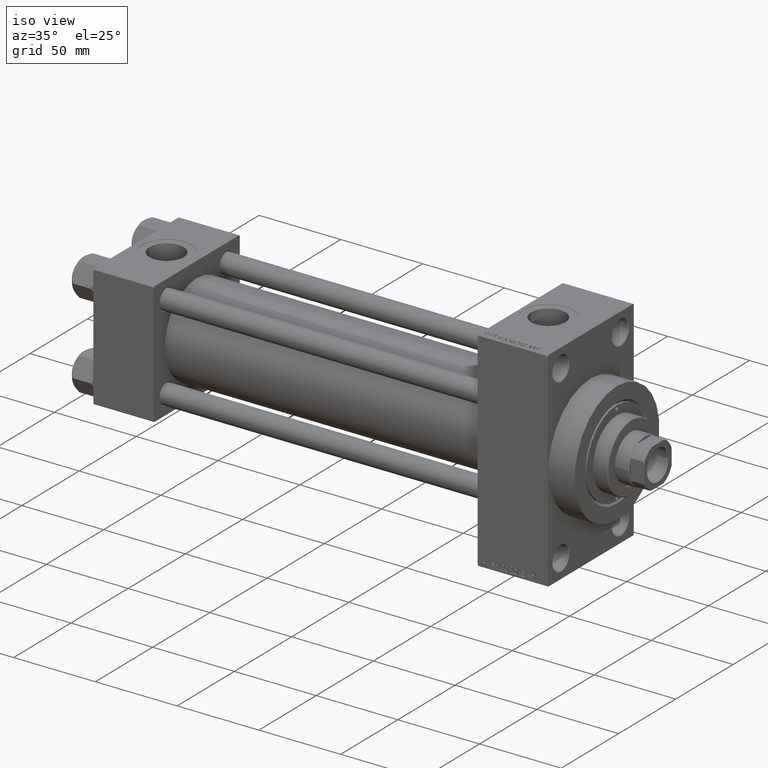
[diagram: clean part render]
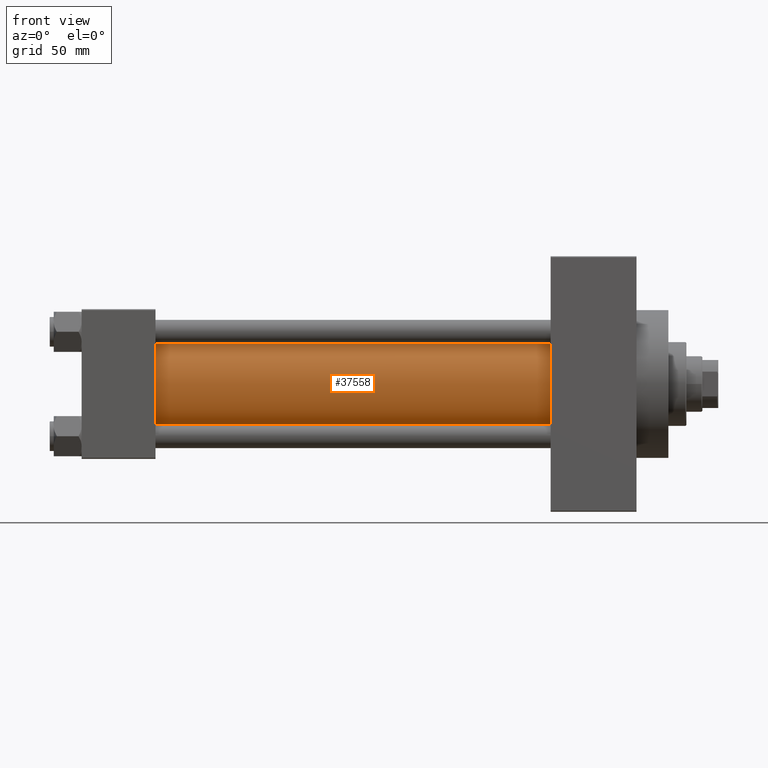
[diagram: tour spotlight — one face highlighted and labeled with its STEP entity id]
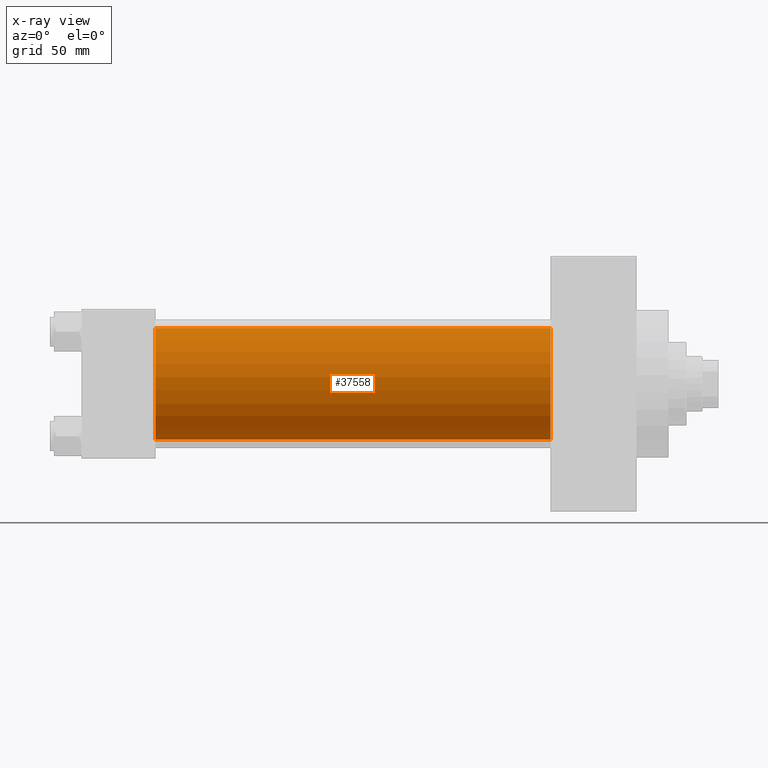
[diagram: x-ray of the same camera — body ghosted, this tour face saturated]
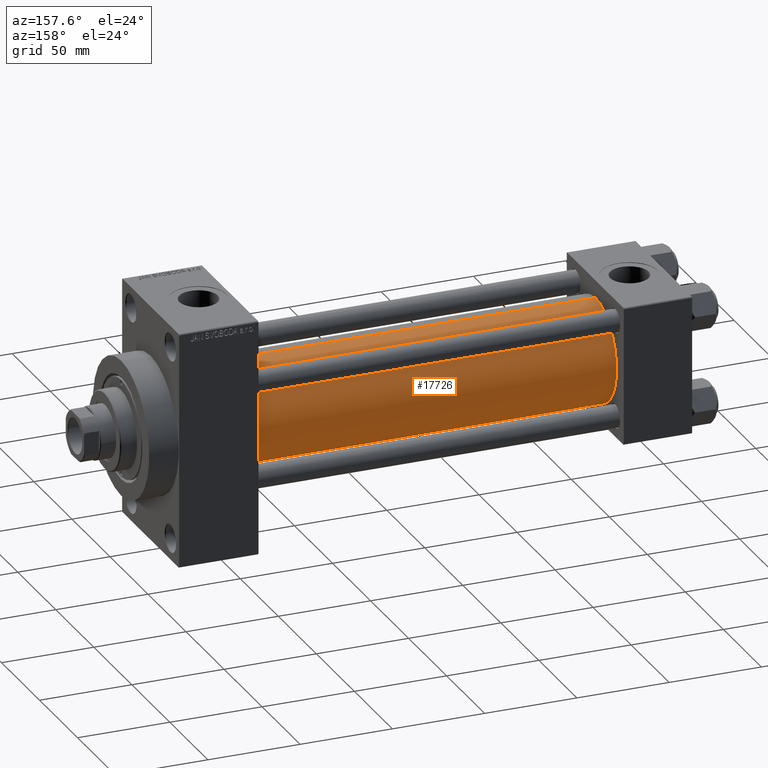
[diagram: tour spotlight — one face highlighted and labeled with its STEP entity id]
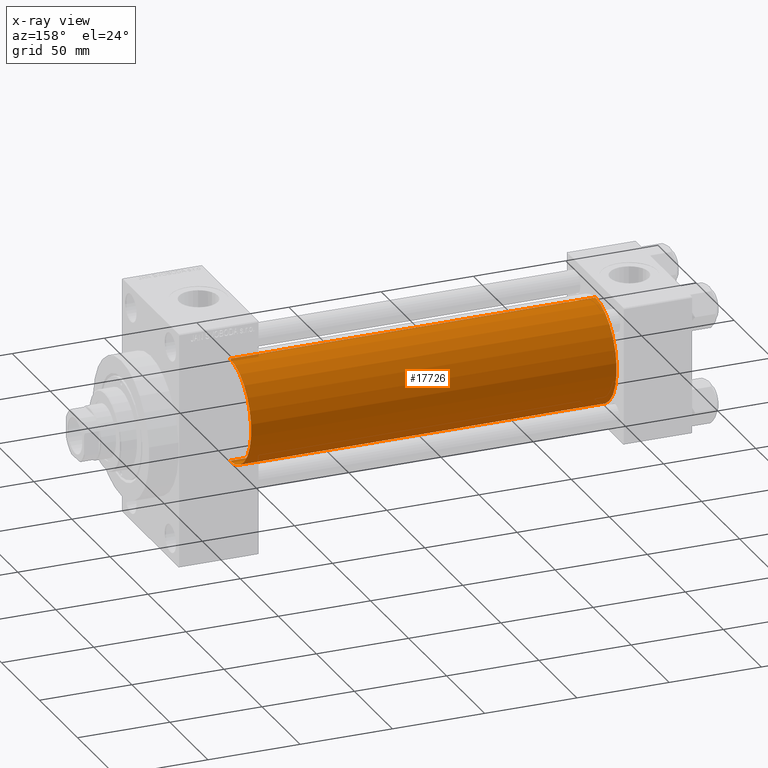
[diagram: x-ray of the same camera — body ghosted, this tour face saturated]
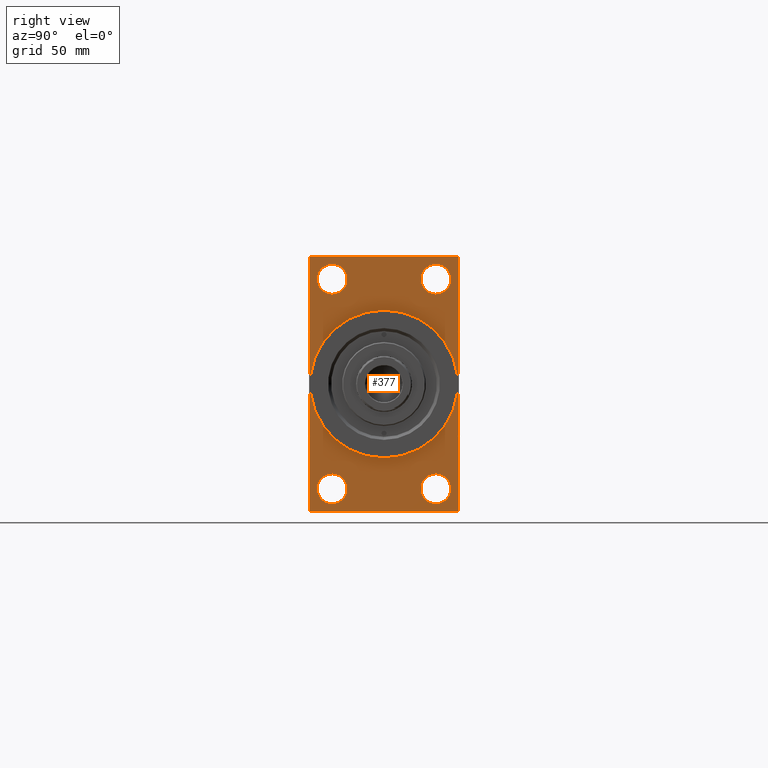
[diagram: tour spotlight — one face highlighted and labeled with its STEP entity id]
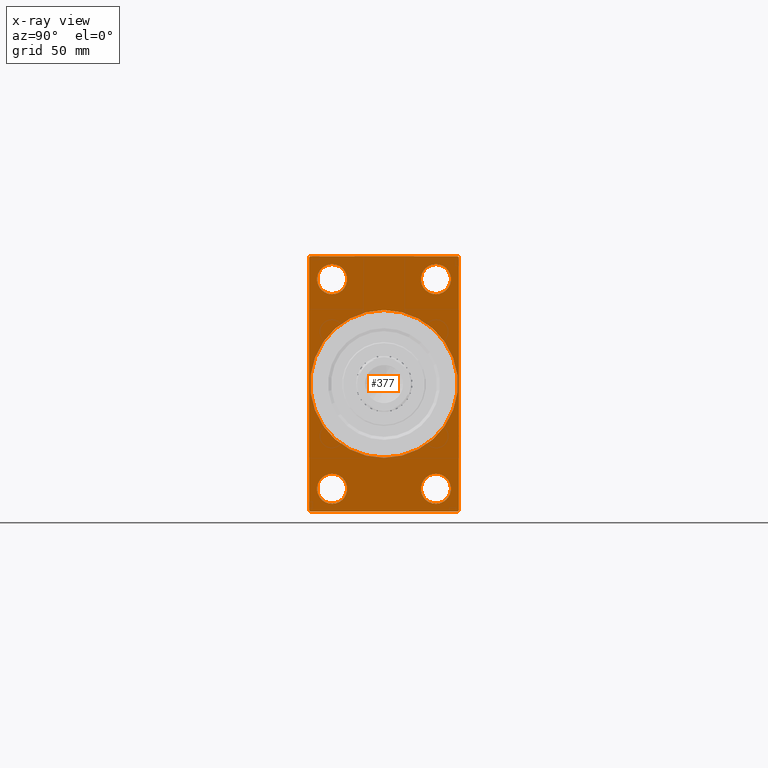
[diagram: x-ray of the same camera — body ghosted, this tour face saturated]
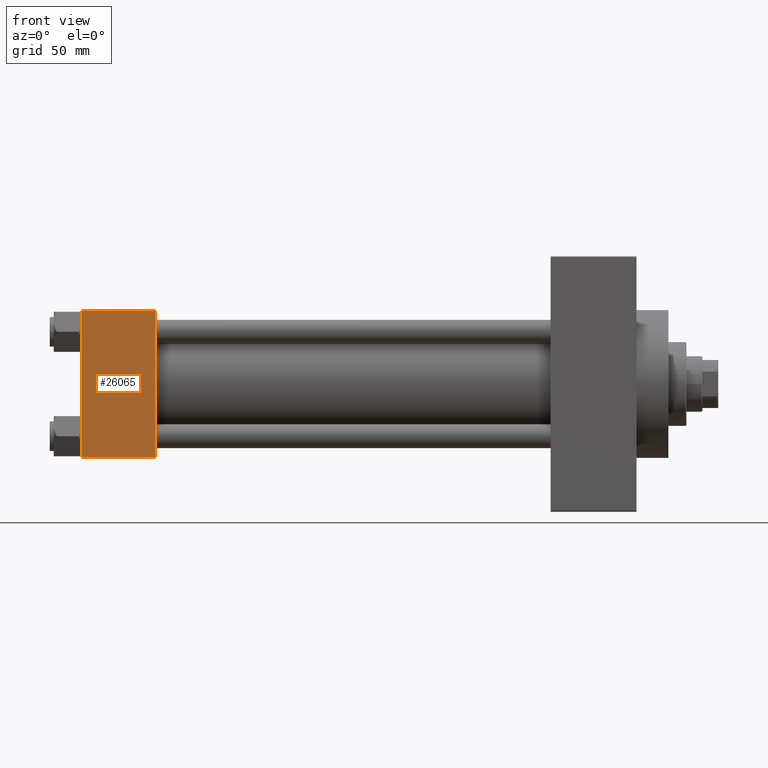
[diagram: tour spotlight — one face highlighted and labeled with its STEP entity id]
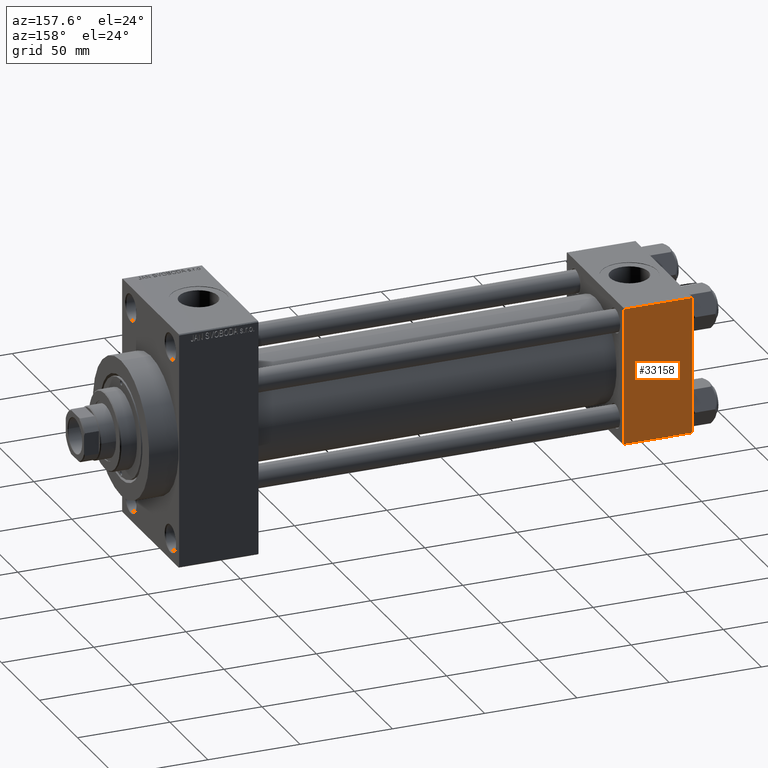
[diagram: tour spotlight — one face highlighted and labeled with its STEP entity id]
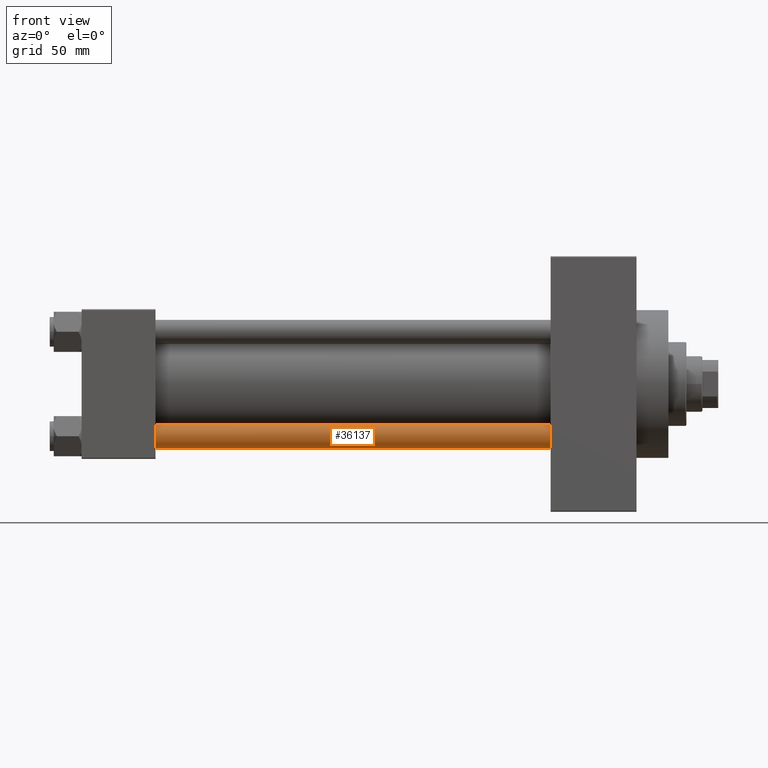
[diagram: tour spotlight — one face highlighted and labeled with its STEP entity id]
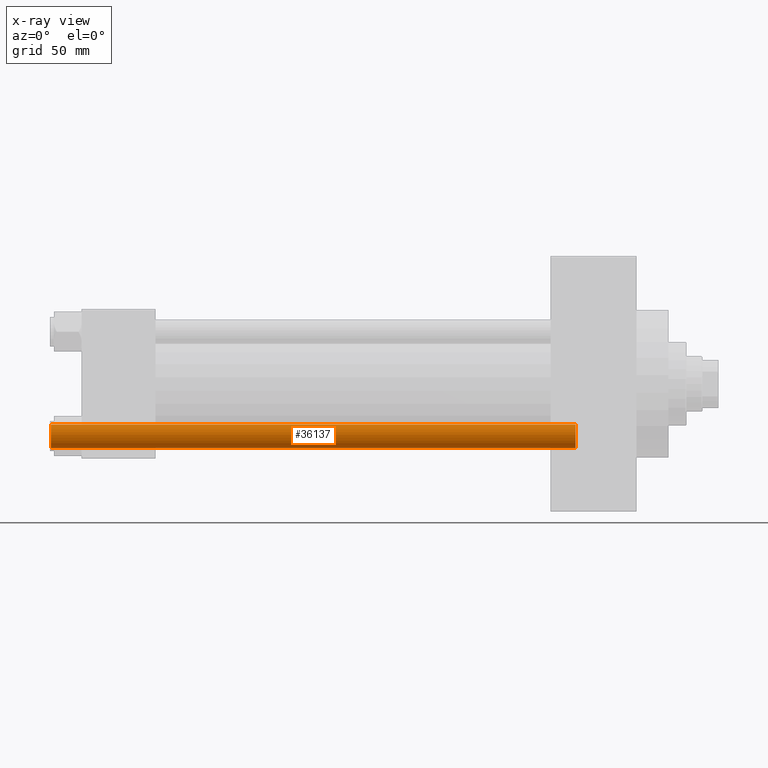
[diagram: x-ray of the same camera — body ghosted, this tour face saturated]
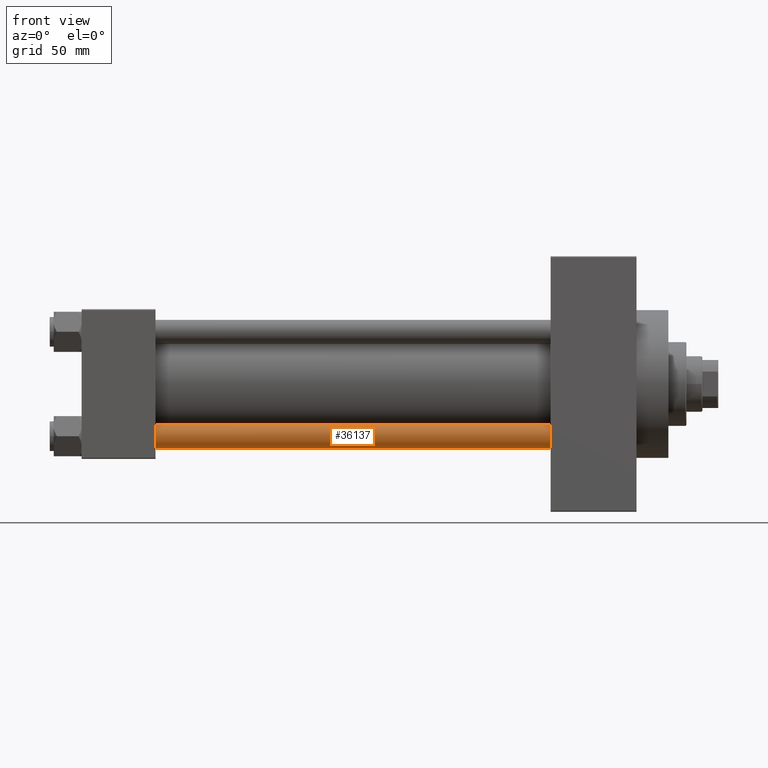
[diagram: tour spotlight — one face highlighted and labeled with its STEP entity id]
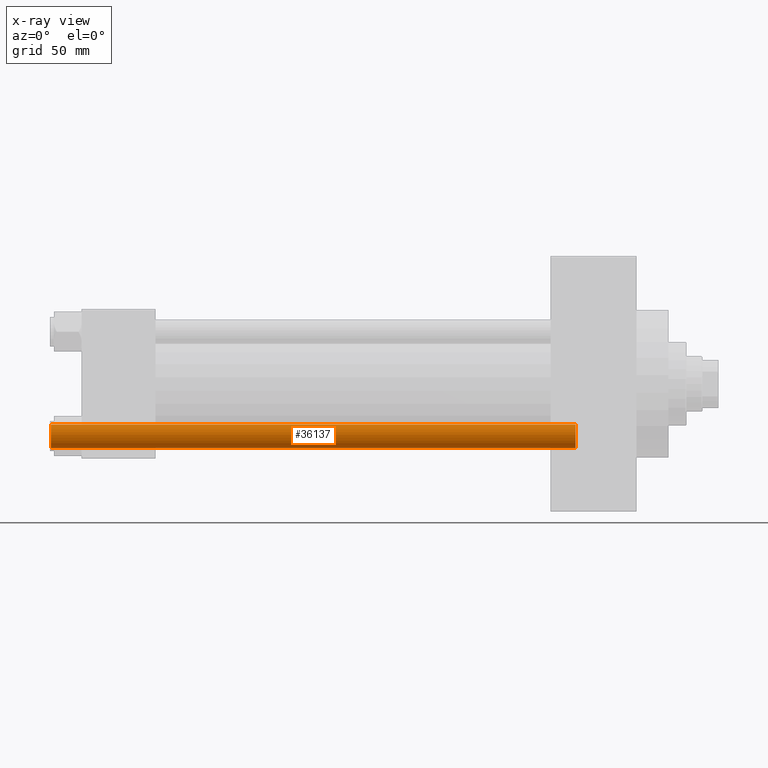
[diagram: x-ray of the same camera — body ghosted, this tour face saturated]
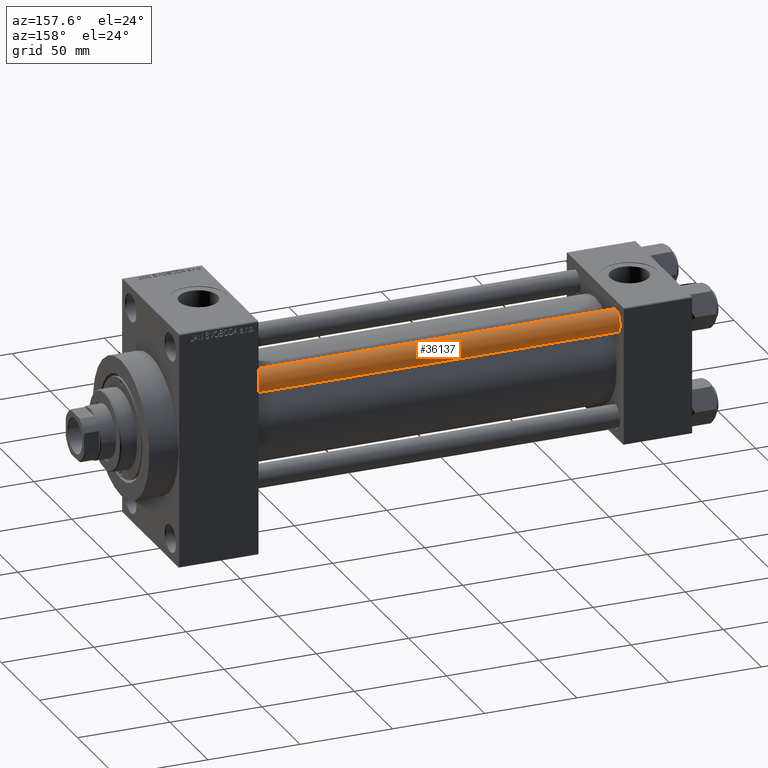
[diagram: tour spotlight — one face highlighted and labeled with its STEP entity id]
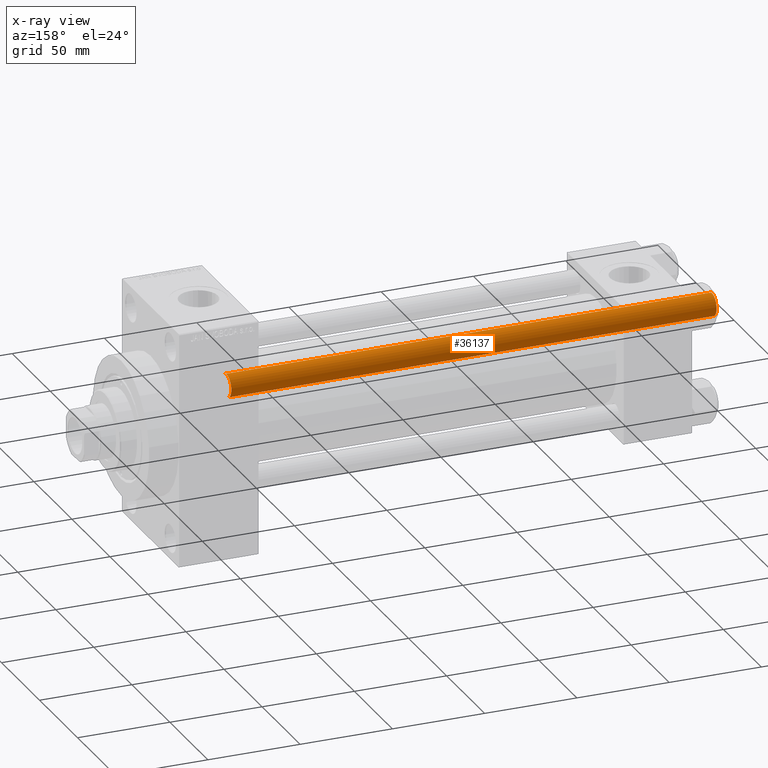
[diagram: x-ray of the same camera — body ghosted, this tour face saturated]
A machine part: a face-by-face anatomy tour. The part has 1111 B-rep faces; the first image is the clean iso view, then the 8 largest visible faces are spotlighted one at a time (largest first), each with its STEP entity span.

Face 1 — front view, entity #37558. An x-ray twin of the same camera follows (body ghosted, this face saturated) — the face is partly hidden behind the body. In plain terms, the highlighted cylindrical surface (partial cylindrical patch) has radius 28 mm, axis along (-1, -0, -0).
Definition (entity closure, byte-faithful):
#762 = FACE_OUTER_BOUND ( 'NONE', #33899, .T. ) ;
#1239 = CYLINDRICAL_SURFACE ( 'NONE', #22950, 28.00000000000000000 ) ;
#1244 = CARTESIAN_POINT ( 'NONE',  ( 37.00000000000000711, -2.602085213965210642E-15, 28.00000000000000000 ) ) ;
#1266 = AXIS2_PLACEMENT_3D ( 'NONE', #42017, #30977, #9188 ) ;
#2054 = CIRCLE ( 'NONE', #44947, 28.00000000000000000 ) ;
#2429 = VECTOR ( 'NONE', #26843, 1000.000000000000000 ) ;
#2483 = EDGE_CURVE ( 'NONE', #11944, #34063, #23026, .T. ) ;
#2645 = VECTOR ( 'NONE', #20775, 1000.000000000000000 ) ;
#6148 = CARTESIAN_POINT ( 'NONE',  ( 235.0000000000000284, 8.269258236473784371E-16, -28.00000000000000000 ) ) ;
#9188 = DIRECTION ( 'NONE',  ( 0.000000000000000000, 0.000000000000000000, 1.000000000000000000 ) ) ;
#11944 = VERTEX_POINT ( 'NONE', #17835 ) ;
#12277 = DIRECTION ( 'NONE',  ( -1.000000000000000000, -0.000000000000000000, -0.000000000000000000 ) ) ;
#17322 = DIRECTION ( 'NONE',  ( 0.000000000000000000, 0.000000000000000000, -1.000000000000000000 ) ) ;
#17835 = CARTESIAN_POINT ( 'NONE',  ( 235.0000000000000284, -2.602085213965210642E-15, 28.00000000000000000 ) ) ;
#18326 = EDGE_CURVE ( 'NONE', #11944, #39576, #2054, .T. ) ;
#19964 = CARTESIAN_POINT ( 'NONE',  ( 235.0000000000000284, -2.602085213965210642E-15, 0.000000000000000000 ) ) ;
#20775 = DIRECTION ( 'NONE',  ( -1.000000000000000000, -0.000000000000000000, -0.000000000000000000 ) ) ;
#21088 = EDGE_CURVE ( 'NONE', #39576, #34616, #39671, .T. ) ;
#22950 = AXIS2_PLACEMENT_3D ( 'NONE', #26153, #12277, #41509 ) ;
#23026 = LINE ( 'NONE', #41958, #2429 ) ;
#23316 = ORIENTED_EDGE ( 'NONE', *, *, #2483, .T. ) ;
#25867 = EDGE_CURVE ( 'NONE', #34063, #34616, #29539, .T. ) ;
#26153 = CARTESIAN_POINT ( 'NONE',  ( 235.0000000000000284, -2.602085213965210642E-15, 0.000000000000000000 ) ) ;
#26843 = DIRECTION ( 'NONE',  ( -1.000000000000000000, -0.000000000000000000, -0.000000000000000000 ) ) ;
#27374 = DIRECTION ( 'NONE',  ( 1.000000000000000000, 0.000000000000000000, 0.000000000000000000 ) ) ;
#29539 = CIRCLE ( 'NONE', #1266, 28.00000000000000000 ) ;
#30977 = DIRECTION ( 'NONE',  ( 1.000000000000000000, -0.000000000000000000, 0.000000000000000000 ) ) ;
#33899 = EDGE_LOOP ( 'NONE', ( #42984, #44748, #23316, #43007 ) ) ;
#34063 = VERTEX_POINT ( 'NONE', #1244 ) ;
#34616 = VERTEX_POINT ( 'NONE', #38794 ) ;
#37558 = ADVANCED_FACE ( 'NONE', ( #762 ), #1239, .T. ) ;
#37967 = CARTESIAN_POINT ( 'NONE',  ( 235.0000000000000284, 8.269258236473784371E-16, -28.00000000000000000 ) ) ;
#38794 = CARTESIAN_POINT ( 'NONE',  ( 37.00000000000000711, 8.269258236473784371E-16, -28.00000000000000000 ) ) ;
#39576 = VERTEX_POINT ( 'NONE', #37967 ) ;
#39671 = LINE ( 'NONE', #6148, #2645 ) ;
#41509 = DIRECTION ( 'NONE',  ( 0.000000000000000000, 0.000000000000000000, 1.000000000000000000 ) ) ;
#41958 = CARTESIAN_POINT ( 'NONE',  ( 235.0000000000000284, -2.602085213965210642E-15, 28.00000000000000000 ) ) ;
#42017 = CARTESIAN_POINT ( 'NONE',  ( 37.00000000000000711, -2.602085213965210642E-15, 0.000000000000000000 ) ) ;
#42984 = ORIENTED_EDGE ( 'NONE', *, *, #21088, .F. ) ;
#43007 = ORIENTED_EDGE ( 'NONE', *, *, #25867, .T. ) ;
#44748 = ORIENTED_EDGE ( 'NONE', *, *, #18326, .F. ) ;
#44947 = AXIS2_PLACEMENT_3D ( 'NONE', #19964, #27374, #17322 ) ;

Face 2 — auxiliary view, entity #17726. An x-ray twin of the same camera follows (body ghosted, this face saturated) — the face is partly hidden behind the body. In plain terms, the highlighted cylindrical surface (partial cylindrical patch) has radius 28 mm, axis along (-1, -0, -0).
Definition (entity closure, byte-faithful):
#1244 = CARTESIAN_POINT ( 'NONE',  ( 37.00000000000000711, -2.602085213965210642E-15, 28.00000000000000000 ) ) ;
#2429 = VECTOR ( 'NONE', #26843, 1000.000000000000000 ) ;
#2483 = EDGE_CURVE ( 'NONE', #11944, #34063, #23026, .T. ) ;
#2645 = VECTOR ( 'NONE', #20775, 1000.000000000000000 ) ;
#6148 = CARTESIAN_POINT ( 'NONE',  ( 235.0000000000000284, 8.269258236473784371E-16, -28.00000000000000000 ) ) ;
#6516 = EDGE_CURVE ( 'NONE', #39576, #11944, #41499, .T. ) ;
#9271 = CIRCLE ( 'NONE', #21501, 28.00000000000000000 ) ;
#10850 = DIRECTION ( 'NONE',  ( 1.000000000000000000, -0.000000000000000000, 0.000000000000000000 ) ) ;
#11648 = ORIENTED_EDGE ( 'NONE', *, *, #6516, .F. ) ;
#11944 = VERTEX_POINT ( 'NONE', #17835 ) ;
#13981 = CARTESIAN_POINT ( 'NONE',  ( 37.00000000000000711, -2.602085213965210642E-15, 0.000000000000000000 ) ) ;
#16664 = DIRECTION ( 'NONE',  ( 0.000000000000000000, 0.000000000000000000, -1.000000000000000000 ) ) ;
#17726 = ADVANCED_FACE ( 'NONE', ( #47410 ), #40435, .T. ) ;
#17835 = CARTESIAN_POINT ( 'NONE',  ( 235.0000000000000284, -2.602085213965210642E-15, 28.00000000000000000 ) ) ;
#20775 = DIRECTION ( 'NONE',  ( -1.000000000000000000, -0.000000000000000000, -0.000000000000000000 ) ) ;
#21088 = EDGE_CURVE ( 'NONE', #39576, #34616, #39671, .T. ) ;
#21501 = AXIS2_PLACEMENT_3D ( 'NONE', #13981, #10850, #43920 ) ;
#21522 = CARTESIAN_POINT ( 'NONE',  ( 235.0000000000000284, -2.602085213965210642E-15, 0.000000000000000000 ) ) ;
#23026 = LINE ( 'NONE', #41958, #2429 ) ;
#23614 = ORIENTED_EDGE ( 'NONE', *, *, #21088, .T. ) ;
#26843 = DIRECTION ( 'NONE',  ( -1.000000000000000000, -0.000000000000000000, -0.000000000000000000 ) ) ;
#28129 = DIRECTION ( 'NONE',  ( 1.000000000000000000, 0.000000000000000000, 0.000000000000000000 ) ) ;
#32293 = DIRECTION ( 'NONE',  ( -1.000000000000000000, -0.000000000000000000, -0.000000000000000000 ) ) ;
#33818 = AXIS2_PLACEMENT_3D ( 'NONE', #45206, #28129, #16664 ) ;
#34063 = VERTEX_POINT ( 'NONE', #1244 ) ;
#34616 = VERTEX_POINT ( 'NONE', #38794 ) ;
#37967 = CARTESIAN_POINT ( 'NONE',  ( 235.0000000000000284, 8.269258236473784371E-16, -28.00000000000000000 ) ) ;
#38039 = AXIS2_PLACEMENT_3D ( 'NONE', #21522, #32293, #46945 ) ;
#38794 = CARTESIAN_POINT ( 'NONE',  ( 37.00000000000000711, 8.269258236473784371E-16, -28.00000000000000000 ) ) ;
#39576 = VERTEX_POINT ( 'NONE', #37967 ) ;
#39671 = LINE ( 'NONE', #6148, #2645 ) ;
#40435 = CYLINDRICAL_SURFACE ( 'NONE', #38039, 28.00000000000000000 ) ;
#41247 = EDGE_CURVE ( 'NONE', #34616, #34063, #9271, .T. ) ;
#41499 = CIRCLE ( 'NONE', #33818, 28.00000000000000000 ) ;
#41958 = CARTESIAN_POINT ( 'NONE',  ( 235.0000000000000284, -2.602085213965210642E-15, 28.00000000000000000 ) ) ;
#42775 = ORIENTED_EDGE ( 'NONE', *, *, #2483, .F. ) ;
#42866 = ORIENTED_EDGE ( 'NONE', *, *, #41247, .T. ) ;
#43920 = DIRECTION ( 'NONE',  ( 0.000000000000000000, 0.000000000000000000, 1.000000000000000000 ) ) ;
#45206 = CARTESIAN_POINT ( 'NONE',  ( 235.0000000000000284, -2.602085213965210642E-15, 0.000000000000000000 ) ) ;
#45394 = EDGE_LOOP ( 'NONE', ( #11648, #23614, #42866, #42775 ) ) ;
#46945 = DIRECTION ( 'NONE',  ( 0.000000000000000000, 0.000000000000000000, 1.000000000000000000 ) ) ;
#47410 = FACE_OUTER_BOUND ( 'NONE', #45394, .T. ) ;

Face 3 — right view, entity #377. An x-ray twin of the same camera follows (body ghosted, this face saturated) — the face is partly hidden behind the body. In plain terms, the highlighted planar face has unit normal (-1, 0, 0).
Definition (entity closure, byte-faithful):
#377 = ADVANCED_FACE ( 'NONE', ( #14171, #25167, #24471, #31894, #39559, #17534 ), #3130, .F. ) ;
#427 = VERTEX_POINT ( 'NONE', #4311 ) ;
#731 = CARTESIAN_POINT ( 'NONE',  ( 278.0000000000000000, 0.000000000000000000, 37.00000000000000000 ) ) ;
#833 = EDGE_CURVE ( 'NONE', #26963, #28207, #11400, .T. ) ;
#1499 = EDGE_CURVE ( 'NONE', #25698, #37287, #14651, .T. ) ;
#1728 = ORIENTED_EDGE ( 'NONE', *, *, #22436, .T. ) ;
#1976 = LINE ( 'NONE', #30500, #4975 ) ;
#2893 = DIRECTION ( 'NONE',  ( -1.000000000000000000, 0.000000000000000000, -0.000000000000000000 ) ) ;
#2907 = CARTESIAN_POINT ( 'NONE',  ( 278.0000000000000000, 0.000000000000000000, 0.000000000000000000 ) ) ;
#3052 = LINE ( 'NONE', #42388, #5891 ) ;
#3130 = PLANE ( 'NONE',  #36773 ) ;
#3573 = EDGE_CURVE ( 'NONE', #37287, #25698, #35348, .T. ) ;
#4152 = CIRCLE ( 'NONE', #17179, 7.499999999999978684 ) ;
#4311 = CARTESIAN_POINT ( 'NONE',  ( 278.0000000000000000, 26.00000000000000000, 59.99999999999988631 ) ) ;
#4398 = CARTESIAN_POINT ( 'NONE',  ( 278.0000000000000000, -25.99999999999999645, 45.00000000000009948 ) ) ;
#4786 = CIRCLE ( 'NONE', #10905, 7.499999999999978684 ) ;
#4975 = VECTOR ( 'NONE', #30965, 999.9999999999998863 ) ;
#5317 = DIRECTION ( 'NONE',  ( -1.000000000000000000, 0.000000000000000000, -0.000000000000000000 ) ) ;
#5416 = VERTEX_POINT ( 'NONE', #34417 ) ;
#5882 = EDGE_LOOP ( 'NONE', ( #26663, #36975, #19620, #1728, #47160, #15411, #13431, #46848 ) ) ;
#5891 = VECTOR ( 'NONE', #35163, 1000.000000000000000 ) ;
#5930 = CARTESIAN_POINT ( 'NONE',  ( 278.0000000000000000, -37.49999999999999289, -63.50000000000002842 ) ) ;
#6143 = CARTESIAN_POINT ( 'NONE',  ( 278.0000000000000000, 37.50000000000000000, 63.99999999999998579 ) ) ;
#6629 = LINE ( 'NONE', #18118, #24898 ) ;
#6675 = CIRCLE ( 'NONE', #11299, 7.499999999999978684 ) ;
#7025 = CARTESIAN_POINT ( 'NONE',  ( 278.0000000000000000, -37.49999999999999289, 63.49999999999997158 ) ) ;
#7050 = VERTEX_POINT ( 'NONE', #21165 ) ;
#7278 = VECTOR ( 'NONE', #16896, 1000.000000000000114 ) ;
#7816 = ORIENTED_EDGE ( 'NONE', *, *, #1499, .T. ) ;
#8044 = DIRECTION ( 'NONE',  ( 0.000000000000000000, 0.000000000000000000, 1.000000000000000000 ) ) ;
#8193 = EDGE_CURVE ( 'NONE', #9539, #9864, #4786, .T. ) ;
#8291 = DIRECTION ( 'NONE',  ( -1.000000000000000000, 0.000000000000000000, -0.000000000000000000 ) ) ;
#8598 = EDGE_LOOP ( 'NONE', ( #38816, #20424 ) ) ;
#8840 = EDGE_CURVE ( 'NONE', #26963, #22089, #9754, .T. ) ;
#8875 = CARTESIAN_POINT ( 'NONE',  ( 278.0000000000000000, 37.49999999999999289, -64.00000000000000000 ) ) ;
#9123 = ORIENTED_EDGE ( 'NONE', *, *, #20280, .F. ) ;
#9539 = VERTEX_POINT ( 'NONE', #11751 ) ;
#9754 = LINE ( 'NONE', #6143, #22428 ) ;
#9864 = VERTEX_POINT ( 'NONE', #45261 ) ;
#10381 = CARTESIAN_POINT ( 'NONE',  ( 278.0000000000000000, 26.00000000000000000, -59.99999999999997158 ) ) ;
#10384 = EDGE_CURVE ( 'NONE', #20571, #29132, #37619, .T. ) ;
#10905 = AXIS2_PLACEMENT_3D ( 'NONE', #12280, #5317, #26393 ) ;
#11142 = VERTEX_POINT ( 'NONE', #29779 ) ;
#11163 = DIRECTION ( 'NONE',  ( 0.000000000000000000, -0.7071067811865474617, 0.7071067811865474617 ) ) ;
#11299 = AXIS2_PLACEMENT_3D ( 'NONE', #35696, #2893, #32111 ) ;
#11400 = LINE ( 'NONE', #33416, #42189 ) ;
#11723 = EDGE_CURVE ( 'NONE', #7050, #45983, #4152, .T. ) ;
#11751 = CARTESIAN_POINT ( 'NONE',  ( 278.0000000000000000, -25.99999999999999645, -59.99999999999997158 ) ) ;
#11880 = CARTESIAN_POINT ( 'NONE',  ( 278.0000000000000000, 37.49999999999999289, -63.49999999999995737 ) ) ;
#11934 = CARTESIAN_POINT ( 'NONE',  ( 278.0000000000000000, 26.00000000000000000, 52.49999999999999289 ) ) ;
#12280 = CARTESIAN_POINT ( 'NONE',  ( 278.0000000000000000, -25.99999999999999645, -52.49999999999999289 ) ) ;
#12382 = CIRCLE ( 'NONE', #28392, 37.00000000000000000 ) ;
#13112 = DIRECTION ( 'NONE',  ( 0.000000000000000000, -5.421010862427522170E-17, -1.000000000000000000 ) ) ;
#13431 = ORIENTED_EDGE ( 'NONE', *, *, #43736, .T. ) ;
#13607 = VERTEX_POINT ( 'NONE', #46858 ) ;
#14171 = FACE_BOUND ( 'NONE', #36566, .T. ) ;
#14556 = DIRECTION ( 'NONE',  ( 0.000000000000000000, 0.000000000000000000, -1.000000000000000000 ) ) ;
#14651 = CIRCLE ( 'NONE', #46812, 7.499999999999895195 ) ;
#14981 = DIRECTION ( 'NONE',  ( 0.000000000000000000, 0.000000000000000000, 1.000000000000000000 ) ) ;
#15235 = DIRECTION ( 'NONE',  ( -0.000000000000000000, -0.7071067811865525687, -0.7071067811865425767 ) ) ;
#15411 = ORIENTED_EDGE ( 'NONE', *, *, #833, .T. ) ;
#15580 = CARTESIAN_POINT ( 'NONE',  ( 278.0000000000000000, 36.99999999999993605, -64.00000000000000000 ) ) ;
#16023 = CARTESIAN_POINT ( 'NONE',  ( 278.0000000000000000, 37.50000000000000000, 63.99999999999998579 ) ) ;
#16147 = EDGE_CURVE ( 'NONE', #45983, #7050, #43334, .T. ) ;
#16896 = DIRECTION ( 'NONE',  ( 0.000000000000000000, 0.7071067811865376918, -0.7071067811865573427 ) ) ;
#17157 = CIRCLE ( 'NONE', #40089, 37.00000000000000000 ) ;
#17179 = AXIS2_PLACEMENT_3D ( 'NONE', #22187, #8291, #8044 ) ;
#17534 = FACE_OUTER_BOUND ( 'NONE', #5882, .T. ) ;
#18118 = CARTESIAN_POINT ( 'NONE',  ( 278.0000000000000000, -37.49999999999999289, 63.49999999999997158 ) ) ;
#18741 = CARTESIAN_POINT ( 'NONE',  ( 278.0000000000000000, 26.00000000000000000, -52.49999999999999289 ) ) ;
#19016 = ORIENTED_EDGE ( 'NONE', *, *, #16147, .T. ) ;
#19620 = ORIENTED_EDGE ( 'NONE', *, *, #10384, .F. ) ;
#19698 = CARTESIAN_POINT ( 'NONE',  ( 278.0000000000000000, -25.99999999999999645, 52.50000000000000000 ) ) ;
#20033 = ORIENTED_EDGE ( 'NONE', *, *, #11723, .T. ) ;
#20280 = EDGE_CURVE ( 'NONE', #43535, #11142, #17157, .T. ) ;
#20424 = ORIENTED_EDGE ( 'NONE', *, *, #27543, .T. ) ;
#20571 = VERTEX_POINT ( 'NONE', #15580 ) ;
#21165 = CARTESIAN_POINT ( 'NONE',  ( 278.0000000000000000, 26.00000000000000000, -45.00000000000001421 ) ) ;
#21910 = AXIS2_PLACEMENT_3D ( 'NONE', #18741, #24977, #36449 ) ;
#22038 = CARTESIAN_POINT ( 'NONE',  ( 278.0000000000000000, 0.000000000000000000, 0.000000000000000000 ) ) ;
#22089 = VERTEX_POINT ( 'NONE', #11880 ) ;
#22124 = ORIENTED_EDGE ( 'NONE', *, *, #47032, .T. ) ;
#22187 = CARTESIAN_POINT ( 'NONE',  ( 278.0000000000000000, 26.00000000000000000, -52.49999999999999289 ) ) ;
#22303 = EDGE_CURVE ( 'NONE', #23754, #29132, #31962, .T. ) ;
#22428 = VECTOR ( 'NONE', #13112, 1000.000000000000000 ) ;
#22436 = EDGE_CURVE ( 'NONE', #20571, #22089, #1976, .T. ) ;
#23754 = VERTEX_POINT ( 'NONE', #5930 ) ;
#23769 = EDGE_CURVE ( 'NONE', #13607, #31147, #6629, .T. ) ;
#24451 = CARTESIAN_POINT ( 'NONE',  ( 278.0000000000000000, -37.00000000000002132, -64.00000000000001421 ) ) ;
#24471 = FACE_BOUND ( 'NONE', #31958, .T. ) ;
#24549 = AXIS2_PLACEMENT_3D ( 'NONE', #19698, #26384, #45125 ) ;
#24578 = VECTOR ( 'NONE', #37808, 1000.000000000000000 ) ;
#24898 = VECTOR ( 'NONE', #15235, 999.9999999999998863 ) ;
#24977 = DIRECTION ( 'NONE',  ( -1.000000000000000000, 0.000000000000000000, -0.000000000000000000 ) ) ;
#25167 = FACE_BOUND ( 'NONE', #8598, .T. ) ;
#25698 = VERTEX_POINT ( 'NONE', #4398 ) ;
#26384 = DIRECTION ( 'NONE',  ( -1.000000000000000000, 0.000000000000000000, -0.000000000000000000 ) ) ;
#26393 = DIRECTION ( 'NONE',  ( 0.000000000000000000, 0.000000000000000000, 1.000000000000000000 ) ) ;
#26663 = ORIENTED_EDGE ( 'NONE', *, *, #27099, .T. ) ;
#26963 = VERTEX_POINT ( 'NONE', #44328 ) ;
#27099 = EDGE_CURVE ( 'NONE', #31147, #23754, #3052, .T. ) ;
#27543 = EDGE_CURVE ( 'NONE', #9864, #9539, #6675, .T. ) ;
#27595 = DIRECTION ( 'NONE',  ( 0.000000000000000000, 0.000000000000000000, 1.000000000000000000 ) ) ;
#28207 = VERTEX_POINT ( 'NONE', #42802 ) ;
#28392 = AXIS2_PLACEMENT_3D ( 'NONE', #28669, #47393, #14556 ) ;
#28669 = CARTESIAN_POINT ( 'NONE',  ( 278.0000000000000000, 0.000000000000000000, 0.000000000000000000 ) ) ;
#28754 = DIRECTION ( 'NONE',  ( -0.000000000000000000, 0.000000000000000000, 1.000000000000000000 ) ) ;
#29132 = VERTEX_POINT ( 'NONE', #24451 ) ;
#29779 = CARTESIAN_POINT ( 'NONE',  ( 278.0000000000000000, 4.531193156845206793E-15, -37.00000000000000000 ) ) ;
#30500 = CARTESIAN_POINT ( 'NONE',  ( 278.0000000000000000, 37.49999999999999289, -63.49999999999995737 ) ) ;
#30538 = CARTESIAN_POINT ( 'NONE',  ( 278.0000000000000000, 26.00000000000000000, 52.49999999999999289 ) ) ;
#30965 = DIRECTION ( 'NONE',  ( -0.000000000000000000, 0.7071067811865574537, 0.7071067811865376918 ) ) ;
#31147 = VERTEX_POINT ( 'NONE', #7025 ) ;
#31517 = AXIS2_PLACEMENT_3D ( 'NONE', #30538, #41328, #14981 ) ;
#31608 = EDGE_CURVE ( 'NONE', #427, #5416, #41918, .T. ) ;
#31894 = FACE_BOUND ( 'NONE', #36242, .T. ) ;
#31958 = EDGE_LOOP ( 'NONE', ( #19016, #20033 ) ) ;
#31962 = LINE ( 'NONE', #38683, #7278 ) ;
#32111 = DIRECTION ( 'NONE',  ( 0.000000000000000000, 0.000000000000000000, 1.000000000000000000 ) ) ;
#33299 = DIRECTION ( 'NONE',  ( 0.000000000000000000, -1.000000000000000000, -1.850371707708594563E-16 ) ) ;
#33416 = CARTESIAN_POINT ( 'NONE',  ( 278.0000000000000000, 37.00000000000000000, 63.99999999999998579 ) ) ;
#33548 = ORIENTED_EDGE ( 'NONE', *, *, #31608, .T. ) ;
#33753 = DIRECTION ( 'NONE',  ( 1.000000000000000000, 0.000000000000000000, 0.000000000000000000 ) ) ;
#34229 = AXIS2_PLACEMENT_3D ( 'NONE', #11934, #45493, #41160 ) ;
#34417 = CARTESIAN_POINT ( 'NONE',  ( 278.0000000000000000, 26.00000000000000000, 45.00000000000009237 ) ) ;
#35024 = DIRECTION ( 'NONE',  ( -1.000000000000000000, 0.000000000000000000, -0.000000000000000000 ) ) ;
#35163 = DIRECTION ( 'NONE',  ( 0.000000000000000000, 0.000000000000000000, -1.000000000000000000 ) ) ;
#35348 = CIRCLE ( 'NONE', #24549, 7.499999999999895195 ) ;
#35696 = CARTESIAN_POINT ( 'NONE',  ( 278.0000000000000000, -25.99999999999999645, -52.49999999999999289 ) ) ;
#35722 = CARTESIAN_POINT ( 'NONE',  ( 278.0000000000000000, -25.99999999999999645, 52.50000000000000000 ) ) ;
#36241 = ORIENTED_EDGE ( 'NONE', *, *, #3573, .T. ) ;
#36242 = EDGE_LOOP ( 'NONE', ( #22124, #33548 ) ) ;
#36449 = DIRECTION ( 'NONE',  ( 0.000000000000000000, 0.000000000000000000, 1.000000000000000000 ) ) ;
#36566 = EDGE_LOOP ( 'NONE', ( #7816, #36241 ) ) ;
#36652 = EDGE_LOOP ( 'NONE', ( #9123, #44190 ) ) ;
#36773 = AXIS2_PLACEMENT_3D ( 'NONE', #2907, #39790, #28754 ) ;
#36975 = ORIENTED_EDGE ( 'NONE', *, *, #22303, .T. ) ;
#37287 = VERTEX_POINT ( 'NONE', #39741 ) ;
#37349 = DIRECTION ( 'NONE',  ( 0.000000000000000000, 0.000000000000000000, -1.000000000000000000 ) ) ;
#37619 = LINE ( 'NONE', #8875, #43927 ) ;
#37808 = DIRECTION ( 'NONE',  ( 0.000000000000000000, -1.000000000000000000, -1.850371707708594563E-16 ) ) ;
#38683 = CARTESIAN_POINT ( 'NONE',  ( 278.0000000000000000, -37.00000000000002132, -64.00000000000001421 ) ) ;
#38816 = ORIENTED_EDGE ( 'NONE', *, *, #8193, .T. ) ;
#39559 = FACE_BOUND ( 'NONE', #36652, .T. ) ;
#39741 = CARTESIAN_POINT ( 'NONE',  ( 278.0000000000000000, -25.99999999999999645, 59.99999999999989342 ) ) ;
#39790 = DIRECTION ( 'NONE',  ( -1.000000000000000000, 0.000000000000000000, -0.000000000000000000 ) ) ;
#40089 = AXIS2_PLACEMENT_3D ( 'NONE', #22038, #33753, #37349 ) ;
#41160 = DIRECTION ( 'NONE',  ( 0.000000000000000000, 0.000000000000000000, 1.000000000000000000 ) ) ;
#41328 = DIRECTION ( 'NONE',  ( -1.000000000000000000, 0.000000000000000000, -0.000000000000000000 ) ) ;
#41918 = CIRCLE ( 'NONE', #34229, 7.499999999999895195 ) ;
#42128 = LINE ( 'NONE', #16023, #24578 ) ;
#42189 = VECTOR ( 'NONE', #11163, 1000.000000000000114 ) ;
#42388 = CARTESIAN_POINT ( 'NONE',  ( 278.0000000000000000, -37.49999999999999289, 63.99999999999997158 ) ) ;
#42802 = CARTESIAN_POINT ( 'NONE',  ( 278.0000000000000000, 37.00000000000000000, 63.99999999999998579 ) ) ;
#43334 = CIRCLE ( 'NONE', #21910, 7.499999999999978684 ) ;
#43535 = VERTEX_POINT ( 'NONE', #731 ) ;
#43736 = EDGE_CURVE ( 'NONE', #28207, #13607, #42128, .T. ) ;
#43781 = CIRCLE ( 'NONE', #31517, 7.499999999999895195 ) ;
#43927 = VECTOR ( 'NONE', #33299, 1000.000000000000000 ) ;
#44190 = ORIENTED_EDGE ( 'NONE', *, *, #45845, .F. ) ;
#44328 = CARTESIAN_POINT ( 'NONE',  ( 278.0000000000000000, 37.50000000000000000, 63.49999999999998579 ) ) ;
#45125 = DIRECTION ( 'NONE',  ( 0.000000000000000000, 0.000000000000000000, 1.000000000000000000 ) ) ;
#45261 = CARTESIAN_POINT ( 'NONE',  ( 278.0000000000000000, -25.99999999999999645, -45.00000000000001421 ) ) ;
#45493 = DIRECTION ( 'NONE',  ( -1.000000000000000000, 0.000000000000000000, -0.000000000000000000 ) ) ;
#45845 = EDGE_CURVE ( 'NONE', #11142, #43535, #12382, .T. ) ;
#45983 = VERTEX_POINT ( 'NONE', #10381 ) ;
#46812 = AXIS2_PLACEMENT_3D ( 'NONE', #35722, #35024, #27595 ) ;
#46848 = ORIENTED_EDGE ( 'NONE', *, *, #23769, .T. ) ;
#46858 = CARTESIAN_POINT ( 'NONE',  ( 278.0000000000000000, -36.99999999999998579, 63.99999999999997158 ) ) ;
#47032 = EDGE_CURVE ( 'NONE', #5416, #427, #43781, .T. ) ;
#47160 = ORIENTED_EDGE ( 'NONE', *, *, #8840, .F. ) ;
#47393 = DIRECTION ( 'NONE',  ( 1.000000000000000000, 0.000000000000000000, 0.000000000000000000 ) ) ;

Face 4 — front view, entity #26065. In plain terms, the highlighted planar face has unit normal (0, 1, 0).
Definition (entity closure, byte-faithful):
#2090 = VECTOR ( 'NONE', #36275, 1000.000000000000000 ) ;
#7777 = LINE ( 'NONE', #22162, #2090 ) ;
#7931 = EDGE_CURVE ( 'NONE', #33462, #11169, #9442, .T. ) ;
#9442 = LINE ( 'NONE', #24048, #15530 ) ;
#10096 = VECTOR ( 'NONE', #31868, 1000.000000000000000 ) ;
#11008 = FACE_OUTER_BOUND ( 'NONE', #35460, .T. ) ;
#11169 = VERTEX_POINT ( 'NONE', #33607 ) ;
#11360 = ORIENTED_EDGE ( 'NONE', *, *, #7931, .T. ) ;
#13685 = LINE ( 'NONE', #20395, #10096 ) ;
#13867 = ORIENTED_EDGE ( 'NONE', *, *, #30800, .F. ) ;
#14486 = CARTESIAN_POINT ( 'NONE',  ( 37.00000000000000000, -37.50000000000000711, 36.99999999999999289 ) ) ;
#15530 = VECTOR ( 'NONE', #24984, 1000.000000000000000 ) ;
#16520 = CARTESIAN_POINT ( 'NONE',  ( 0.000000000000000000, -37.50000000000000000, -37.00000000000003553 ) ) ;
#17738 = CARTESIAN_POINT ( 'NONE',  ( 0.000000000000000000, -37.50000000000000711, 37.49999999999999289 ) ) ;
#18072 = ORIENTED_EDGE ( 'NONE', *, *, #45290, .T. ) ;
#20395 = CARTESIAN_POINT ( 'NONE',  ( 37.00000000000000000, -37.50000000000000711, 36.99999999999999289 ) ) ;
#20406 = AXIS2_PLACEMENT_3D ( 'NONE', #25591, #22025, #33020 ) ;
#22025 = DIRECTION ( 'NONE',  ( -0.000000000000000000, 1.000000000000000000, 9.251858538542971581E-17 ) ) ;
#22162 = CARTESIAN_POINT ( 'NONE',  ( 37.00000000000000000, -37.50000000000000711, 37.49999999999999289 ) ) ;
#24048 = CARTESIAN_POINT ( 'NONE',  ( 37.00000000000000000, -37.50000000000000000, -37.00000000000003553 ) ) ;
#24984 = DIRECTION ( 'NONE',  ( 1.000000000000000000, 0.000000000000000000, 0.000000000000000000 ) ) ;
#25591 = CARTESIAN_POINT ( 'NONE',  ( 37.00000000000000000, -37.50000000000000711, 37.49999999999999289 ) ) ;
#25755 = VERTEX_POINT ( 'NONE', #14486 ) ;
#25782 = ORIENTED_EDGE ( 'NONE', *, *, #26839, .T. ) ;
#25896 = VERTEX_POINT ( 'NONE', #30265 ) ;
#26065 = ADVANCED_FACE ( 'NONE', ( #11008 ), #43846, .F. ) ;
#26839 = EDGE_CURVE ( 'NONE', #25896, #33462, #39535, .T. ) ;
#29569 = VECTOR ( 'NONE', #35684, 1000.000000000000000 ) ;
#30265 = CARTESIAN_POINT ( 'NONE',  ( 0.000000000000000000, -37.50000000000000711, 36.99999999999999289 ) ) ;
#30800 = EDGE_CURVE ( 'NONE', #25755, #11169, #7777, .T. ) ;
#31868 = DIRECTION ( 'NONE',  ( -1.000000000000000000, 0.000000000000000000, 0.000000000000000000 ) ) ;
#33020 = DIRECTION ( 'NONE',  ( 0.000000000000000000, -9.251858538542971581E-17, 1.000000000000000000 ) ) ;
#33462 = VERTEX_POINT ( 'NONE', #16520 ) ;
#33607 = CARTESIAN_POINT ( 'NONE',  ( 37.00000000000000000, -37.50000000000000000, -37.00000000000003553 ) ) ;
#35460 = EDGE_LOOP ( 'NONE', ( #25782, #11360, #13867, #18072 ) ) ;
#35684 = DIRECTION ( 'NONE',  ( 0.000000000000000000, 9.251858538542971581E-17, -1.000000000000000000 ) ) ;
#36275 = DIRECTION ( 'NONE',  ( 0.000000000000000000, 9.251858538542971581E-17, -1.000000000000000000 ) ) ;
#39535 = LINE ( 'NONE', #17738, #29569 ) ;
#43846 = PLANE ( 'NONE',  #20406 ) ;
#45290 = EDGE_CURVE ( 'NONE', #25755, #25896, #13685, .T. ) ;

Face 5 — auxiliary view, entity #33158. In plain terms, the highlighted planar face has unit normal (0, 1, 0).
Definition (entity closure, byte-faithful):
#744 = LINE ( 'NONE', #29499, #4100 ) ;
#1028 = EDGE_CURVE ( 'NONE', #38478, #29957, #16419, .T. ) ;
#1912 = VECTOR ( 'NONE', #14601, 1000.000000000000000 ) ;
#2160 = AXIS2_PLACEMENT_3D ( 'NONE', #41979, #19460, #30698 ) ;
#4032 = CARTESIAN_POINT ( 'NONE',  ( 37.00000000000000000, 37.49999999999999289, -36.99999999999998579 ) ) ;
#4100 = VECTOR ( 'NONE', #44147, 1000.000000000000000 ) ;
#5155 = ORIENTED_EDGE ( 'NONE', *, *, #12962, .T. ) ;
#5407 = ORIENTED_EDGE ( 'NONE', *, *, #22819, .T. ) ;
#5529 = EDGE_LOOP ( 'NONE', ( #31484, #5155, #44313, #5407 ) ) ;
#10552 = VERTEX_POINT ( 'NONE', #13884 ) ;
#11386 = CARTESIAN_POINT ( 'NONE',  ( 37.00000000000000000, 37.49999999999999289, 37.00000000000000000 ) ) ;
#12962 = EDGE_CURVE ( 'NONE', #29957, #10552, #36608, .T. ) ;
#13884 = CARTESIAN_POINT ( 'NONE',  ( 0.000000000000000000, 37.49999999999999289, -36.99999999999998579 ) ) ;
#14601 = DIRECTION ( 'NONE',  ( -1.000000000000000000, 0.000000000000000000, 0.000000000000000000 ) ) ;
#16106 = FACE_OUTER_BOUND ( 'NONE', #5529, .T. ) ;
#16193 = VECTOR ( 'NONE', #37496, 1000.000000000000000 ) ;
#16419 = LINE ( 'NONE', #30307, #16193 ) ;
#18753 = VECTOR ( 'NONE', #25350, 1000.000000000000000 ) ;
#19460 = DIRECTION ( 'NONE',  ( -0.000000000000000000, 1.000000000000000000, 0.000000000000000000 ) ) ;
#19494 = EDGE_CURVE ( 'NONE', #39452, #10552, #744, .T. ) ;
#21316 = LINE ( 'NONE', #36132, #18753 ) ;
#22819 = EDGE_CURVE ( 'NONE', #39452, #38478, #21316, .T. ) ;
#25350 = DIRECTION ( 'NONE',  ( 1.000000000000000000, 0.000000000000000000, 0.000000000000000000 ) ) ;
#29499 = CARTESIAN_POINT ( 'NONE',  ( 0.000000000000000000, 37.49999999999999289, 37.50000000000000000 ) ) ;
#29957 = VERTEX_POINT ( 'NONE', #32165 ) ;
#30307 = CARTESIAN_POINT ( 'NONE',  ( 37.00000000000000000, 37.49999999999999289, 37.50000000000000000 ) ) ;
#30472 = PLANE ( 'NONE',  #2160 ) ;
#30698 = DIRECTION ( 'NONE',  ( 0.000000000000000000, -0.000000000000000000, 1.000000000000000000 ) ) ;
#31484 = ORIENTED_EDGE ( 'NONE', *, *, #1028, .T. ) ;
#32165 = CARTESIAN_POINT ( 'NONE',  ( 37.00000000000000000, 37.49999999999999289, -36.99999999999998579 ) ) ;
#33158 = ADVANCED_FACE ( 'NONE', ( #16106 ), #30472, .T. ) ;
#36132 = CARTESIAN_POINT ( 'NONE',  ( 37.00000000000000000, 37.49999999999999289, 37.00000000000000000 ) ) ;
#36525 = CARTESIAN_POINT ( 'NONE',  ( 0.000000000000000000, 37.49999999999999289, 37.00000000000000000 ) ) ;
#36608 = LINE ( 'NONE', #4032, #1912 ) ;
#37496 = DIRECTION ( 'NONE',  ( 0.000000000000000000, 0.000000000000000000, -1.000000000000000000 ) ) ;
#38478 = VERTEX_POINT ( 'NONE', #11386 ) ;
#39452 = VERTEX_POINT ( 'NONE', #36525 ) ;
#41979 = CARTESIAN_POINT ( 'NONE',  ( 37.00000000000000000, 37.49999999999999289, 37.50000000000000000 ) ) ;
#44147 = DIRECTION ( 'NONE',  ( 0.000000000000000000, 0.000000000000000000, -1.000000000000000000 ) ) ;
#44313 = ORIENTED_EDGE ( 'NONE', *, *, #19494, .F. ) ;

Face 6 — front view, entity #36137. An x-ray twin of the same camera follows (body ghosted, this face saturated) — the face is partly hidden behind the body. In plain terms, the highlighted cylindrical surface (edge-blend (fillet) strip) has radius 6 mm, axis along (1, 0, 0).
Definition (entity closure, byte-faithful):
#136 = VERTEX_POINT ( 'NONE', #18046 ) ;
#3043 = CARTESIAN_POINT ( 'NONE',  ( -6.000000000000000888, 0.000000000000000000, 264.0000000000000000 ) ) ;
#3365 = DIRECTION ( 'NONE',  ( -1.000000000000000000, 0.000000000000000000, 0.000000000000000000 ) ) ;
#5539 = VERTEX_POINT ( 'NONE', #25269 ) ;
#6100 = CARTESIAN_POINT ( 'NONE',  ( 6.000000000000000888, 7.347880794884120722E-16, 264.0000000000000000 ) ) ;
#6664 = DIRECTION ( 'NONE',  ( 0.000000000000000000, 0.000000000000000000, -1.000000000000000000 ) ) ;
#11184 = LINE ( 'NONE', #3043, #37080 ) ;
#13320 = EDGE_CURVE ( 'NONE', #46871, #5539, #11184, .T. ) ;
#13335 = EDGE_LOOP ( 'NONE', ( #29781, #20979, #30256, #46552 ) ) ;
#14879 = DIRECTION ( 'NONE',  ( -0.000000000000000000, -0.000000000000000000, -1.000000000000000000 ) ) ;
#16400 = DIRECTION ( 'NONE',  ( 1.000000000000000000, 0.000000000000000000, 0.000000000000000000 ) ) ;
#17556 = AXIS2_PLACEMENT_3D ( 'NONE', #21593, #14879, #3365 ) ;
#18046 = CARTESIAN_POINT ( 'NONE',  ( 6.000000000000000888, 7.347880794884120722E-16, 0.5000000000000559552 ) ) ;
#20979 = ORIENTED_EDGE ( 'NONE', *, *, #36947, .T. ) ;
#21197 = VERTEX_POINT ( 'NONE', #44230 ) ;
#21593 = CARTESIAN_POINT ( 'NONE',  ( 0.000000000000000000, 0.000000000000000000, 264.0000000000000000 ) ) ;
#25074 = DIRECTION ( 'NONE',  ( -0.000000000000000000, -0.000000000000000000, -1.000000000000000000 ) ) ;
#25269 = CARTESIAN_POINT ( 'NONE',  ( -6.000000000000000888, 0.000000000000000000, 0.5000000000000559552 ) ) ;
#28522 = CYLINDRICAL_SURFACE ( 'NONE', #17556, 6.000000000000000888 ) ;
#29058 = DIRECTION ( 'NONE',  ( -0.000000000000000000, -0.000000000000000000, -1.000000000000000000 ) ) ;
#29781 = ORIENTED_EDGE ( 'NONE', *, *, #46642, .T. ) ;
#30256 = ORIENTED_EDGE ( 'NONE', *, *, #34995, .T. ) ;
#32749 = DIRECTION ( 'NONE',  ( 1.000000000000000000, 0.000000000000000000, 0.000000000000000000 ) ) ;
#32977 = CARTESIAN_POINT ( 'NONE',  ( 0.000000000000000000, 0.000000000000000000, 263.5000000000000568 ) ) ;
#34880 = CARTESIAN_POINT ( 'NONE',  ( -6.000000000000000888, 0.000000000000000000, 263.5000000000000568 ) ) ;
#34995 = EDGE_CURVE ( 'NONE', #136, #5539, #38171, .T. ) ;
#35760 = DIRECTION ( 'NONE',  ( -0.000000000000000000, -0.000000000000000000, 1.000000000000000000 ) ) ;
#36137 = ADVANCED_FACE ( 'NONE', ( #36176 ), #28522, .T. ) ;
#36176 = FACE_OUTER_BOUND ( 'NONE', #13335, .T. ) ;
#36870 = AXIS2_PLACEMENT_3D ( 'NONE', #32977, #6664, #32749 ) ;
#36947 = EDGE_CURVE ( 'NONE', #21197, #136, #43232, .T. ) ;
#37080 = VECTOR ( 'NONE', #25074, 1000.000000000000000 ) ;
#38171 = CIRCLE ( 'NONE', #44310, 6.000000000000000888 ) ;
#39023 = VECTOR ( 'NONE', #29058, 1000.000000000000000 ) ;
#43029 = CIRCLE ( 'NONE', #36870, 6.000000000000000888 ) ;
#43232 = LINE ( 'NONE', #6100, #39023 ) ;
#44230 = CARTESIAN_POINT ( 'NONE',  ( 6.000000000000000888, 7.347880794884120722E-16, 263.5000000000000568 ) ) ;
#44310 = AXIS2_PLACEMENT_3D ( 'NONE', #46602, #35760, #16400 ) ;
#46552 = ORIENTED_EDGE ( 'NONE', *, *, #13320, .F. ) ;
#46602 = CARTESIAN_POINT ( 'NONE',  ( 0.000000000000000000, 0.000000000000000000, 0.5000000000000559552 ) ) ;
#46642 = EDGE_CURVE ( 'NONE', #46871, #21197, #43029, .T. ) ;
#46871 = VERTEX_POINT ( 'NONE', #34880 ) ;

Face 7 — front view, entity #36137. An x-ray twin of the same camera follows (body ghosted, this face saturated) — the face is partly hidden behind the body. In plain terms, the highlighted cylindrical surface (edge-blend (fillet) strip) has radius 6 mm, axis along (-1, 0, 0).
Definition (entity closure, byte-faithful):
#136 = VERTEX_POINT ( 'NONE', #18046 ) ;
#3043 = CARTESIAN_POINT ( 'NONE',  ( -6.000000000000000888, 0.000000000000000000, 264.0000000000000000 ) ) ;
#3365 = DIRECTION ( 'NONE',  ( -1.000000000000000000, 0.000000000000000000, 0.000000000000000000 ) ) ;
#5539 = VERTEX_POINT ( 'NONE', #25269 ) ;
#6100 = CARTESIAN_POINT ( 'NONE',  ( 6.000000000000000888, 7.347880794884120722E-16, 264.0000000000000000 ) ) ;
#6664 = DIRECTION ( 'NONE',  ( 0.000000000000000000, 0.000000000000000000, -1.000000000000000000 ) ) ;
#11184 = LINE ( 'NONE', #3043, #37080 ) ;
#13320 = EDGE_CURVE ( 'NONE', #46871, #5539, #11184, .T. ) ;
#13335 = EDGE_LOOP ( 'NONE', ( #29781, #20979, #30256, #46552 ) ) ;
#14879 = DIRECTION ( 'NONE',  ( -0.000000000000000000, -0.000000000000000000, -1.000000000000000000 ) ) ;
#16400 = DIRECTION ( 'NONE',  ( 1.000000000000000000, 0.000000000000000000, 0.000000000000000000 ) ) ;
#17556 = AXIS2_PLACEMENT_3D ( 'NONE', #21593, #14879, #3365 ) ;
#18046 = CARTESIAN_POINT ( 'NONE',  ( 6.000000000000000888, 7.347880794884120722E-16, 0.5000000000000559552 ) ) ;
#20979 = ORIENTED_EDGE ( 'NONE', *, *, #36947, .T. ) ;
#21197 = VERTEX_POINT ( 'NONE', #44230 ) ;
#21593 = CARTESIAN_POINT ( 'NONE',  ( 0.000000000000000000, 0.000000000000000000, 264.0000000000000000 ) ) ;
#25074 = DIRECTION ( 'NONE',  ( -0.000000000000000000, -0.000000000000000000, -1.000000000000000000 ) ) ;
#25269 = CARTESIAN_POINT ( 'NONE',  ( -6.000000000000000888, 0.000000000000000000, 0.5000000000000559552 ) ) ;
#28522 = CYLINDRICAL_SURFACE ( 'NONE', #17556, 6.000000000000000888 ) ;
#29058 = DIRECTION ( 'NONE',  ( -0.000000000000000000, -0.000000000000000000, -1.000000000000000000 ) ) ;
#29781 = ORIENTED_EDGE ( 'NONE', *, *, #46642, .T. ) ;
#30256 = ORIENTED_EDGE ( 'NONE', *, *, #34995, .T. ) ;
#32749 = DIRECTION ( 'NONE',  ( 1.000000000000000000, 0.000000000000000000, 0.000000000000000000 ) ) ;
#32977 = CARTESIAN_POINT ( 'NONE',  ( 0.000000000000000000, 0.000000000000000000, 263.5000000000000568 ) ) ;
#34880 = CARTESIAN_POINT ( 'NONE',  ( -6.000000000000000888, 0.000000000000000000, 263.5000000000000568 ) ) ;
#34995 = EDGE_CURVE ( 'NONE', #136, #5539, #38171, .T. ) ;
#35760 = DIRECTION ( 'NONE',  ( -0.000000000000000000, -0.000000000000000000, 1.000000000000000000 ) ) ;
#36137 = ADVANCED_FACE ( 'NONE', ( #36176 ), #28522, .T. ) ;
#36176 = FACE_OUTER_BOUND ( 'NONE', #13335, .T. ) ;
#36870 = AXIS2_PLACEMENT_3D ( 'NONE', #32977, #6664, #32749 ) ;
#36947 = EDGE_CURVE ( 'NONE', #21197, #136, #43232, .T. ) ;
#37080 = VECTOR ( 'NONE', #25074, 1000.000000000000000 ) ;
#38171 = CIRCLE ( 'NONE', #44310, 6.000000000000000888 ) ;
#39023 = VECTOR ( 'NONE', #29058, 1000.000000000000000 ) ;
#43029 = CIRCLE ( 'NONE', #36870, 6.000000000000000888 ) ;
#43232 = LINE ( 'NONE', #6100, #39023 ) ;
#44230 = CARTESIAN_POINT ( 'NONE',  ( 6.000000000000000888, 7.347880794884120722E-16, 263.5000000000000568 ) ) ;
#44310 = AXIS2_PLACEMENT_3D ( 'NONE', #46602, #35760, #16400 ) ;
#46552 = ORIENTED_EDGE ( 'NONE', *, *, #13320, .F. ) ;
#46602 = CARTESIAN_POINT ( 'NONE',  ( 0.000000000000000000, 0.000000000000000000, 0.5000000000000559552 ) ) ;
#46642 = EDGE_CURVE ( 'NONE', #46871, #21197, #43029, .T. ) ;
#46871 = VERTEX_POINT ( 'NONE', #34880 ) ;

Face 8 — auxiliary view, entity #36137. An x-ray twin of the same camera follows (body ghosted, this face saturated) — the face is partly hidden behind the body. In plain terms, the highlighted cylindrical surface (edge-blend (fillet) strip) has radius 6 mm, axis along (-1, -0, 0).
Definition (entity closure, byte-faithful):
#136 = VERTEX_POINT ( 'NONE', #18046 ) ;
#3043 = CARTESIAN_POINT ( 'NONE',  ( -6.000000000000000888, 0.000000000000000000, 264.0000000000000000 ) ) ;
#3365 = DIRECTION ( 'NONE',  ( -1.000000000000000000, 0.000000000000000000, 0.000000000000000000 ) ) ;
#5539 = VERTEX_POINT ( 'NONE', #25269 ) ;
#6100 = CARTESIAN_POINT ( 'NONE',  ( 6.000000000000000888, 7.347880794884120722E-16, 264.0000000000000000 ) ) ;
#6664 = DIRECTION ( 'NONE',  ( 0.000000000000000000, 0.000000000000000000, -1.000000000000000000 ) ) ;
#11184 = LINE ( 'NONE', #3043, #37080 ) ;
#13320 = EDGE_CURVE ( 'NONE', #46871, #5539, #11184, .T. ) ;
#13335 = EDGE_LOOP ( 'NONE', ( #29781, #20979, #30256, #46552 ) ) ;
#14879 = DIRECTION ( 'NONE',  ( -0.000000000000000000, -0.000000000000000000, -1.000000000000000000 ) ) ;
#16400 = DIRECTION ( 'NONE',  ( 1.000000000000000000, 0.000000000000000000, 0.000000000000000000 ) ) ;
#17556 = AXIS2_PLACEMENT_3D ( 'NONE', #21593, #14879, #3365 ) ;
#18046 = CARTESIAN_POINT ( 'NONE',  ( 6.000000000000000888, 7.347880794884120722E-16, 0.5000000000000559552 ) ) ;
#20979 = ORIENTED_EDGE ( 'NONE', *, *, #36947, .T. ) ;
#21197 = VERTEX_POINT ( 'NONE', #44230 ) ;
#21593 = CARTESIAN_POINT ( 'NONE',  ( 0.000000000000000000, 0.000000000000000000, 264.0000000000000000 ) ) ;
#25074 = DIRECTION ( 'NONE',  ( -0.000000000000000000, -0.000000000000000000, -1.000000000000000000 ) ) ;
#25269 = CARTESIAN_POINT ( 'NONE',  ( -6.000000000000000888, 0.000000000000000000, 0.5000000000000559552 ) ) ;
#28522 = CYLINDRICAL_SURFACE ( 'NONE', #17556, 6.000000000000000888 ) ;
#29058 = DIRECTION ( 'NONE',  ( -0.000000000000000000, -0.000000000000000000, -1.000000000000000000 ) ) ;
#29781 = ORIENTED_EDGE ( 'NONE', *, *, #46642, .T. ) ;
#30256 = ORIENTED_EDGE ( 'NONE', *, *, #34995, .T. ) ;
#32749 = DIRECTION ( 'NONE',  ( 1.000000000000000000, 0.000000000000000000, 0.000000000000000000 ) ) ;
#32977 = CARTESIAN_POINT ( 'NONE',  ( 0.000000000000000000, 0.000000000000000000, 263.5000000000000568 ) ) ;
#34880 = CARTESIAN_POINT ( 'NONE',  ( -6.000000000000000888, 0.000000000000000000, 263.5000000000000568 ) ) ;
#34995 = EDGE_CURVE ( 'NONE', #136, #5539, #38171, .T. ) ;
#35760 = DIRECTION ( 'NONE',  ( -0.000000000000000000, -0.000000000000000000, 1.000000000000000000 ) ) ;
#36137 = ADVANCED_FACE ( 'NONE', ( #36176 ), #28522, .T. ) ;
#36176 = FACE_OUTER_BOUND ( 'NONE', #13335, .T. ) ;
#36870 = AXIS2_PLACEMENT_3D ( 'NONE', #32977, #6664, #32749 ) ;
#36947 = EDGE_CURVE ( 'NONE', #21197, #136, #43232, .T. ) ;
#37080 = VECTOR ( 'NONE', #25074, 1000.000000000000000 ) ;
#38171 = CIRCLE ( 'NONE', #44310, 6.000000000000000888 ) ;
#39023 = VECTOR ( 'NONE', #29058, 1000.000000000000000 ) ;
#43029 = CIRCLE ( 'NONE', #36870, 6.000000000000000888 ) ;
#43232 = LINE ( 'NONE', #6100, #39023 ) ;
#44230 = CARTESIAN_POINT ( 'NONE',  ( 6.000000000000000888, 7.347880794884120722E-16, 263.5000000000000568 ) ) ;
#44310 = AXIS2_PLACEMENT_3D ( 'NONE', #46602, #35760, #16400 ) ;
#46552 = ORIENTED_EDGE ( 'NONE', *, *, #13320, .F. ) ;
#46602 = CARTESIAN_POINT ( 'NONE',  ( 0.000000000000000000, 0.000000000000000000, 0.5000000000000559552 ) ) ;
#46642 = EDGE_CURVE ( 'NONE', #46871, #21197, #43029, .T. ) ;
#46871 = VERTEX_POINT ( 'NONE', #34880 ) ;